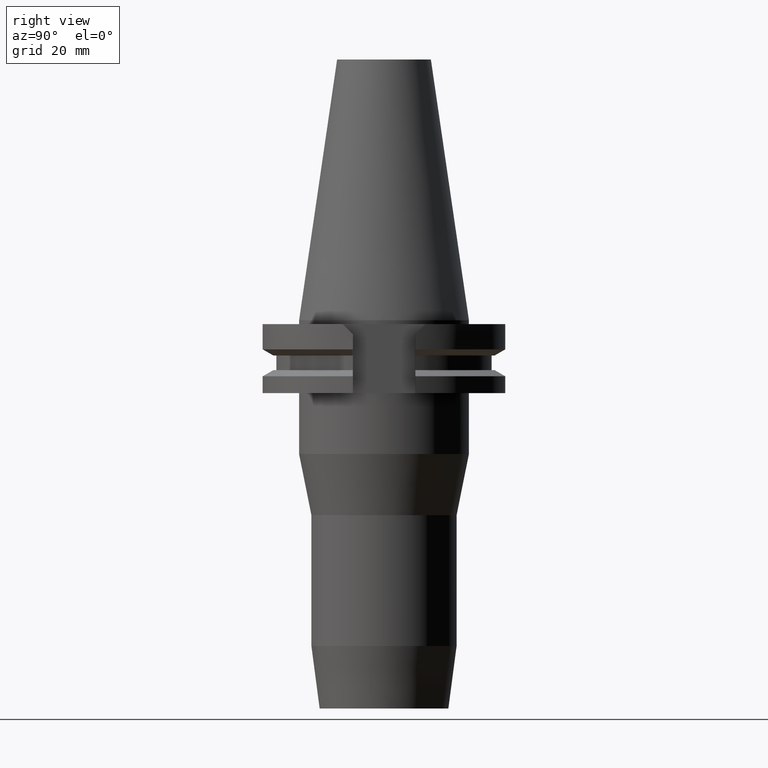
[diagram: clean part render]
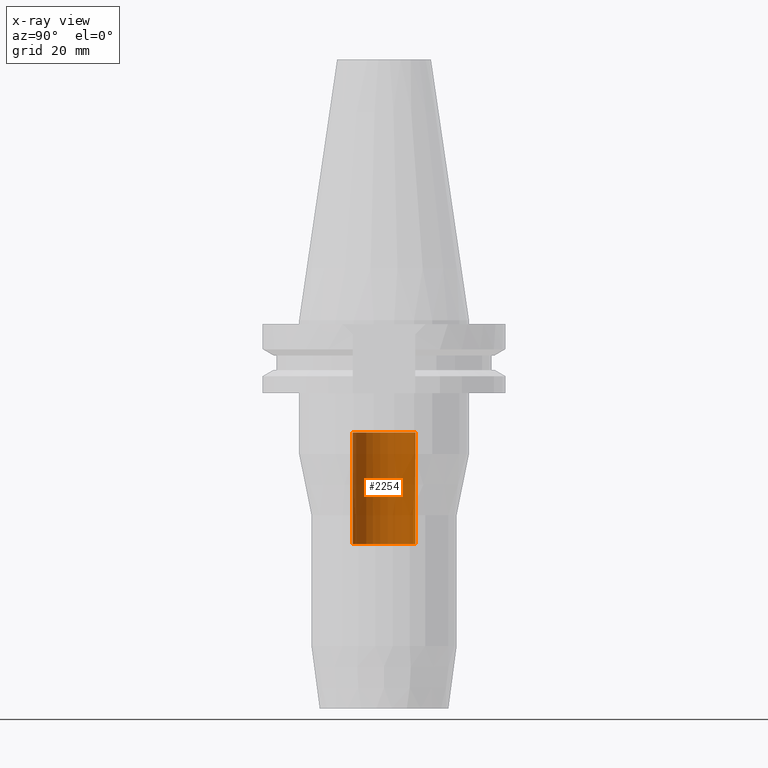
[diagram: x-ray — body ghosted, one internal face saturated and labeled with its STEP entity id]
A machine part, right view, then the same camera in x-ray: the body is ghosted and one INTERNAL B-rep face — a face not visible from any outside direction — is saturated and labeled: STEP entity #2254.
In plain terms, the highlighted cylindrical surface (edge-blend (fillet) strip) has radius 8.2 mm, axis along (0, 0, -1).
Its self-contained STEP definition (entity closure, byte-faithful):
#998=CARTESIAN_POINT('',(0.E0,2.164471368983E-14,-5.86E1));
#999=DIRECTION('',(0.E0,0.E0,-1.E0));
#1000=DIRECTION('',(0.E0,-1.E0,0.E0));
#1001=AXIS2_PLACEMENT_3D('',#998,#999,#1000);
#1030=DIRECTION('',(0.E0,0.E0,1.E0));
#1031=VECTOR('',#1030,2.92E1);
#1032=CARTESIAN_POINT('',(0.E0,-8.2E0,-5.86E1));
#1033=LINE('',#1032,#1031);
#1037=DIRECTION('',(0.E0,0.E0,1.E0));
#1038=VECTOR('',#1037,2.92E1);
#1039=CARTESIAN_POINT('',(0.E0,8.2E0,-5.86E1));
#1040=LINE('',#1039,#1038);
#1052=CARTESIAN_POINT('',(0.E0,2.164471368983E-14,-2.94E1));
#1053=DIRECTION('',(0.E0,0.E0,1.E0));
#1054=DIRECTION('',(0.E0,1.E0,0.E0));
#1055=AXIS2_PLACEMENT_3D('',#1052,#1053,#1054);
#1298=CARTESIAN_POINT('',(0.E0,-8.2E0,-2.94E1));
#1299=CARTESIAN_POINT('',(0.E0,8.2E0,-2.94E1));
#1300=VERTEX_POINT('',#1298);
#1301=VERTEX_POINT('',#1299);
#1302=CARTESIAN_POINT('',(0.E0,8.2E0,-5.86E1));
#1303=VERTEX_POINT('',#1302);
#1304=CARTESIAN_POINT('',(0.E0,-8.2E0,-5.86E1));
#1305=VERTEX_POINT('',#1304);
#2240=CARTESIAN_POINT('',(0.E0,2.164471368983E-14,7.67425E1));
#2241=DIRECTION('',(0.E0,0.E0,-1.E0));
#2242=DIRECTION('',(0.E0,-1.E0,0.E0));
#2243=AXIS2_PLACEMENT_3D('',#2240,#2241,#2242);
#2244=CYLINDRICAL_SURFACE('',#2243,8.2E0);
#2246=ORIENTED_EDGE('',*,*,#2245,.F.);
#2247=ORIENTED_EDGE('',*,*,#2229,.F.);
#2249=ORIENTED_EDGE('',*,*,#2248,.T.);
#2251=ORIENTED_EDGE('',*,*,#2250,.F.);
#2252=EDGE_LOOP('',(#2246,#2247,#2249,#2251));
#2253=FACE_OUTER_BOUND('',#2252,.F.);
#1002=CIRCLE('',#1001,8.2E0);
#1056=CIRCLE('',#1055,8.2E0);
#2229=EDGE_CURVE('',#1305,#1303,#1002,.T.);
#2245=EDGE_CURVE('',#1303,#1301,#1040,.T.);
#2248=EDGE_CURVE('',#1305,#1300,#1033,.T.);
#2250=EDGE_CURVE('',#1301,#1300,#1056,.T.);
#2254=ADVANCED_FACE('',(#2253),#2244,.F.);